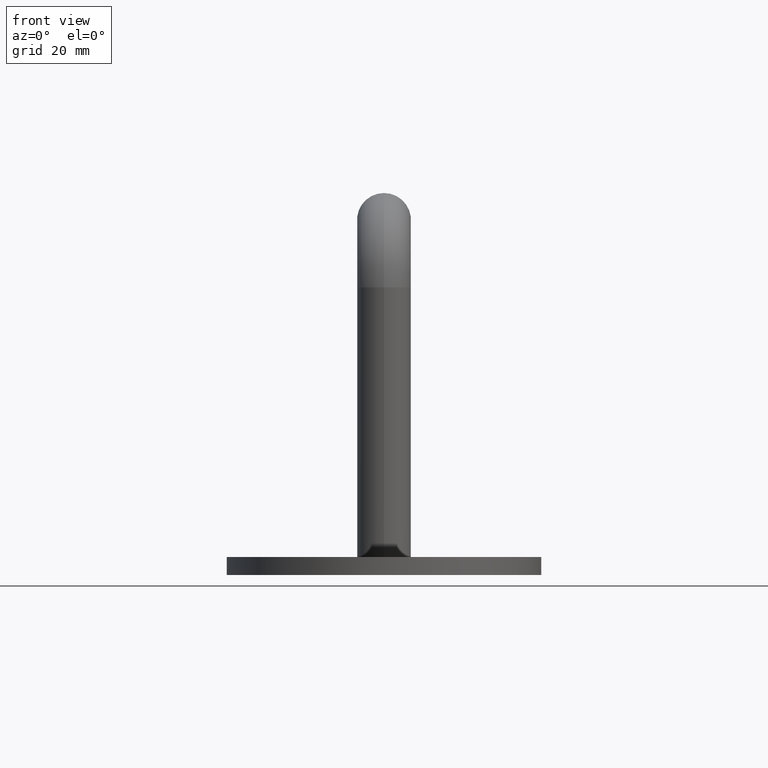
[diagram: clean part render]
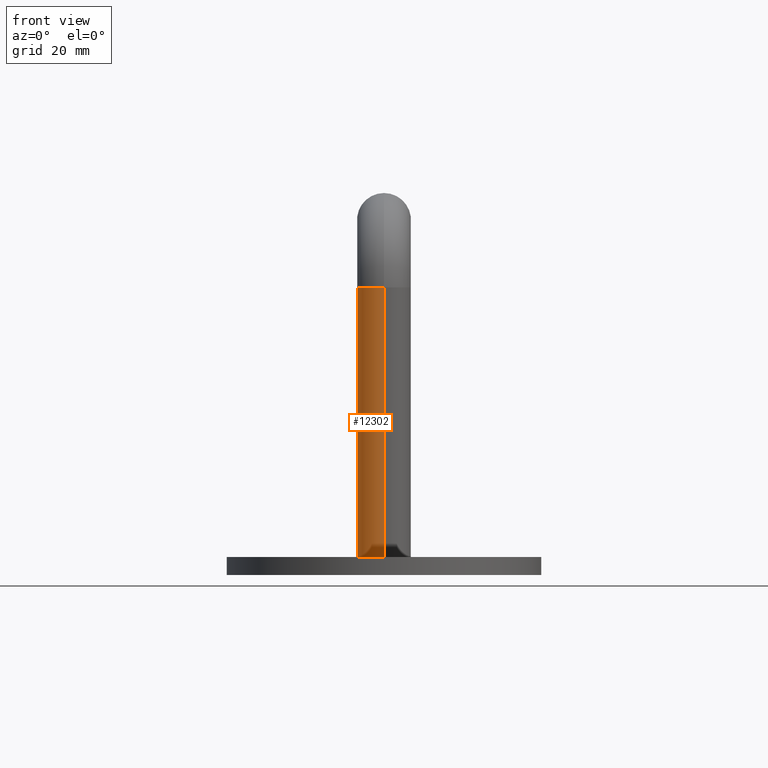
[diagram: same view with one face highlighted and labeled with its STEP entity id]
A machine part, front view. The second image highlights one B-rep face of the part: STEP entity #12302.
In plain terms, the highlighted cylindrical surface (edge-blend (fillet) strip) has radius 6 mm, axis along (0, 0, -1).
Its self-contained STEP definition (entity closure, byte-faithful):
#390 = EDGE_CURVE ( 'NONE', #20771, #8590, #3105, .T. ) ;
#702 = VECTOR ( 'NONE', #4673, 1000.000000000000000 ) ;
#874 = CARTESIAN_POINT ( 'NONE',  ( 0.000000000000000000, 0.000000000000000000, 0.000000000000000000 ) ) ;
#1357 = CYLINDRICAL_SURFACE ( 'NONE', #7834, 6.000000000000000888 ) ;
#1768 = DIRECTION ( 'NONE',  ( 0.000000000000000000, 0.000000000000000000, 1.000000000000000000 ) ) ;
#2284 = DIRECTION ( 'NONE',  ( -0.000000000000000000, 1.156482317317871478E-16, -1.000000000000000000 ) ) ;
#3082 = CARTESIAN_POINT ( 'NONE',  ( 7.347880794884120722E-16, -6.000000000000007994, 60.00000000000000000 ) ) ;
#3105 = CIRCLE ( 'NONE', #9686, 6.000000000000000888 ) ;
#3510 = LINE ( 'NONE', #3082, #702 ) ;
#3551 = DIRECTION ( 'NONE',  ( 1.000000000000000000, 0.000000000000000000, 0.000000000000000000 ) ) ;
#3628 = EDGE_CURVE ( 'NONE', #9193, #20771, #4686, .T. ) ;
#3991 = CIRCLE ( 'NONE', #7928, 6.000000000000000888 ) ;
#4029 = EDGE_LOOP ( 'NONE', ( #19626, #6461, #6926, #9537 ) ) ;
#4673 = DIRECTION ( 'NONE',  ( -0.000000000000000000, 1.156482317317871478E-16, -1.000000000000000000 ) ) ;
#4686 = LINE ( 'NONE', #21426, #13760 ) ;
#6461 = ORIENTED_EDGE ( 'NONE', *, *, #9210, .F. ) ;
#6926 = ORIENTED_EDGE ( 'NONE', *, *, #3628, .T. ) ;
#7834 = AXIS2_PLACEMENT_3D ( 'NONE', #18410, #15410, #20233 ) ;
#7928 = AXIS2_PLACEMENT_3D ( 'NONE', #16747, #1768, #3551 ) ;
#8590 = VERTEX_POINT ( 'NONE', #10342 ) ;
#9193 = VERTEX_POINT ( 'NONE', #10161 ) ;
#9210 = EDGE_CURVE ( 'NONE', #9193, #19466, #3991, .T. ) ;
#9537 = ORIENTED_EDGE ( 'NONE', *, *, #390, .T. ) ;
#9686 = AXIS2_PLACEMENT_3D ( 'NONE', #874, #17465, #20684 ) ;
#10161 = CARTESIAN_POINT ( 'NONE',  ( 0.000000000000000000, 5.999999999999993783, 60.00000000000000000 ) ) ;
#10342 = CARTESIAN_POINT ( 'NONE',  ( 7.347880794884120722E-16, -6.000000000000000888, 0.000000000000000000 ) ) ;
#12198 = CARTESIAN_POINT ( 'NONE',  ( 7.347880794884124666E-16, -6.000000000000008882, 60.00000000000000000 ) ) ;
#12302 = ADVANCED_FACE ( 'NONE', ( #19716 ), #1357, .T. ) ;
#13760 = VECTOR ( 'NONE', #2284, 1000.000000000000000 ) ;
#15410 = DIRECTION ( 'NONE',  ( -0.000000000000000000, 1.156482317317871478E-16, -1.000000000000000000 ) ) ;
#16000 = CARTESIAN_POINT ( 'NONE',  ( 0.000000000000000000, 6.000000000000001776, 0.000000000000000000 ) ) ;
#16747 = CARTESIAN_POINT ( 'NONE',  ( 0.000000000000000000, -6.938893903907228378E-15, 60.00000000000000000 ) ) ;
#17465 = DIRECTION ( 'NONE',  ( 0.000000000000000000, 0.000000000000000000, 1.000000000000000000 ) ) ;
#18410 = CARTESIAN_POINT ( 'NONE',  ( 0.000000000000000000, -6.938893903907228378E-15, 60.00000000000000000 ) ) ;
#19466 = VERTEX_POINT ( 'NONE', #12198 ) ;
#19521 = EDGE_CURVE ( 'NONE', #19466, #8590, #3510, .T. ) ;
#19626 = ORIENTED_EDGE ( 'NONE', *, *, #19521, .F. ) ;
#19716 = FACE_OUTER_BOUND ( 'NONE', #4029, .T. ) ;
#20233 = DIRECTION ( 'NONE',  ( 0.000000000000000000, 1.000000000000000000, 0.000000000000000000 ) ) ;
#20684 = DIRECTION ( 'NONE',  ( 1.000000000000000000, 0.000000000000000000, 0.000000000000000000 ) ) ;
#20771 = VERTEX_POINT ( 'NONE', #16000 ) ;
#21426 = CARTESIAN_POINT ( 'NONE',  ( 0.000000000000000000, 5.999999999999993783, 60.00000000000000000 ) ) ;